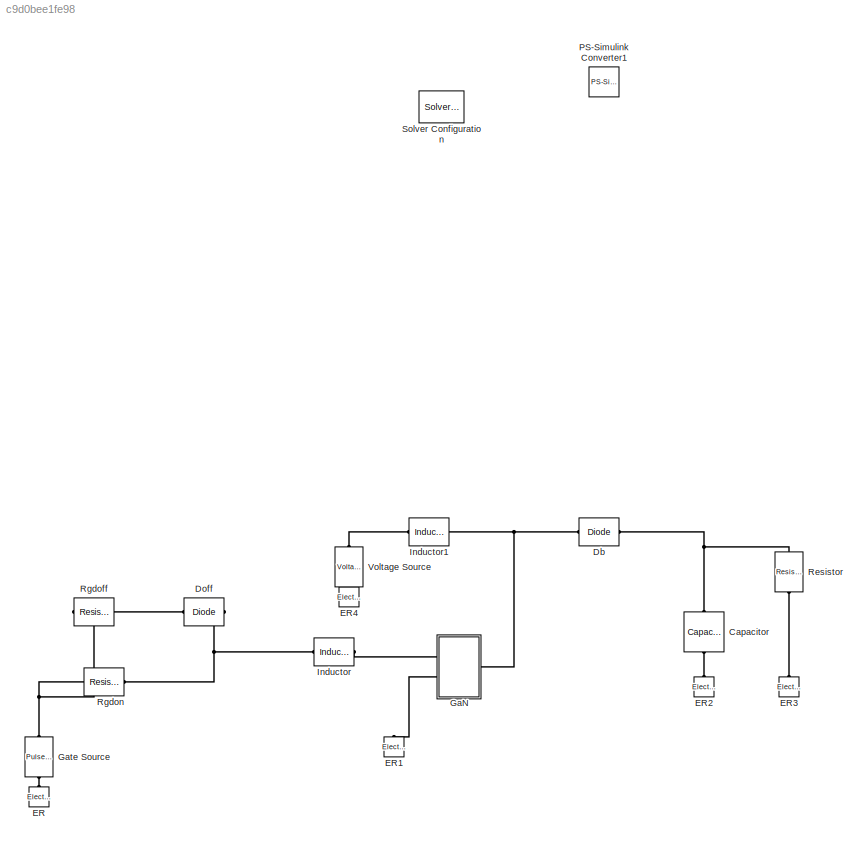
MODEL slx_c9d0bee1fe98
KIND model
CONFIG AbsTol = auto
CONFIG FixedStep = 5e-13
CONFIG MaxStep = auto
CONFIG MinStep = auto
CONFIG RelTol = 1e-3
CONFIG SampleTimeConstraint = Unconstrained
CONFIG Solver = FixedStepAuto
CONFIG SolverMode = Auto
CONFIG SolverName = FixedStepAuto
CONFIG StartTime = 0.0
CONFIG StopTime = 5e-3
BLOCK [Reference] Capacitor  REF=elec_lib/Passive Devices/Capacitor
  Ports = [0, 0, 0, 0, 0, 1, 1]
  SourceBlock = elec_lib/Passive Devices/Capacitor
  SourceType = Capacitor
BLOCK [Reference] Db  REF=elec_lib/Semiconductor
Devices/Diode
  Ports = [0, 0, 0, 0, 0, 1, 1]
  SourceBlock = elec_lib/Semiconductor\nDevices/Diode
  SourceType = Diode
BLOCK [Reference] Doff  REF=elec_lib/Semiconductor
Devices/Diode
  Ports = [0, 0, 0, 0, 0, 1, 1]
  SourceBlock = elec_lib/Semiconductor\nDevices/Diode
  SourceType = Diode
BLOCK [Reference] ER  REF=fl_lib/Electrical/Electrical Elements/Electrical Reference
  Ports = [0, 0, 0, 0, 0, 1]
  SourceBlock = fl_lib/Electrical/Electrical Elements/Electrical Reference
  SourceType = Electrical Reference
BLOCK [Reference] ER1  REF=fl_lib/Electrical/Electrical Elements/Electrical Reference
  Ports = [0, 0, 0, 0, 0, 1]
  SourceBlock = fl_lib/Electrical/Electrical Elements/Electrical Reference
  SourceType = Electrical Reference
BLOCK [Reference] ER2  REF=fl_lib/Electrical/Electrical Elements/Electrical Reference
  Ports = [0, 0, 0, 0, 0, 1]
  SourceBlock = fl_lib/Electrical/Electrical Elements/Electrical Reference
  SourceType = Electrical Reference
BLOCK [Reference] ER3  REF=fl_lib/Electrical/Electrical Elements/Electrical Reference
  Ports = [0, 0, 0, 0, 0, 1]
  SourceBlock = fl_lib/Electrical/Electrical Elements/Electrical Reference
  SourceType = Electrical Reference
BLOCK [Reference] ER4  REF=fl_lib/Electrical/Electrical Elements/Electrical Reference
  Ports = [0, 0, 0, 0, 0, 1]
  SourceBlock = fl_lib/Electrical/Electrical Elements/Electrical Reference
  SourceType = Electrical Reference
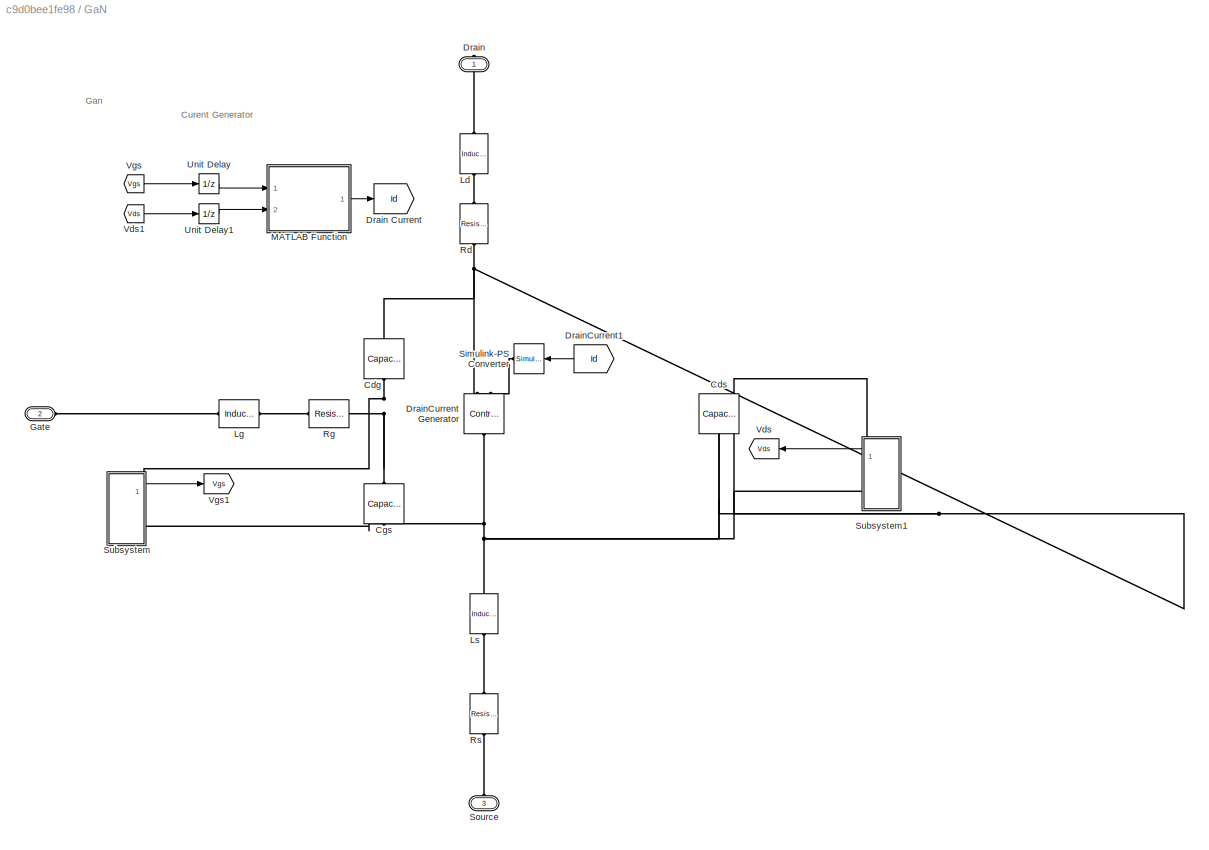
BLOCK [SubSystem] GaN
  Ports = [0, 0, 0, 0, 0, 2, 1]
  RequestExecContextInheritance = off
  Variant = off
BLOCK [Reference] GaN/Cdg  REF=elec_lib/Passive Devices/Capacitor
  Ports = [0, 0, 0, 0, 0, 1, 1]
  SourceBlock = elec_lib/Passive Devices/Capacitor
  SourceType = Capacitor
BLOCK [Reference] GaN/Cds  REF=elec_lib/Passive Devices/Capacitor
  Ports = [0, 0, 0, 0, 0, 1, 1]
  SourceBlock = elec_lib/Passive Devices/Capacitor
  SourceType = Capacitor
BLOCK [Reference] GaN/Cgs  REF=elec_lib/Passive Devices/Capacitor
  Ports = [0, 0, 0, 0, 0, 1, 1]
  SourceBlock = elec_lib/Passive Devices/Capacitor
  SourceType = Capacitor
BLOCK [PMIOPort] GaN/Drain 
  Port = 1
  Side = Right
BLOCK [Goto] GaN/Drain Current
  GotoTag = Id
BLOCK [Reference] GaN/DrainCurrent Generator  REF=fl_lib/Electrical/Electrical Sources/Controlled Current
Source
  Ports = [0, 0, 0, 0, 0, 1, 2]
  SourceBlock = fl_lib/Electrical/Electrical Sources/Controlled Current\nSource
  SourceType = Controlled Current\nSource
BLOCK [From] GaN/DrainCurrent1
  GotoTag = Id
BLOCK [PMIOPort] GaN/Gate
  Port = 2
  Side = Left
BLOCK [Reference] GaN/Ld  REF=elec_lib/Passive Devices/Inductor
  Ports = [0, 0, 0, 0, 0, 1, 1]
  SourceBlock = elec_lib/Passive Devices/Inductor
  SourceType = Inductor
BLOCK [Reference] GaN/Lg  REF=elec_lib/Passive Devices/Inductor
  Ports = [0, 0, 0, 0, 0, 1, 1]
  SourceBlock = elec_lib/Passive Devices/Inductor
  SourceType = Inductor
BLOCK [Reference] GaN/Ls  REF=elec_lib/Passive Devices/Inductor
  Ports = [0, 0, 0, 0, 0, 1, 1]
  SourceBlock = elec_lib/Passive Devices/Inductor
  SourceType = Inductor
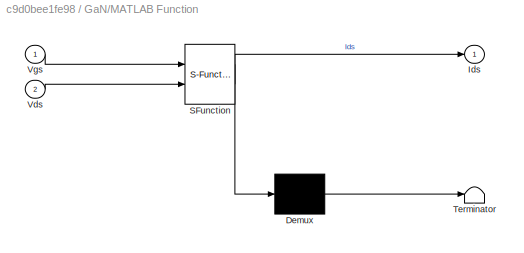
BLOCK [SubSystem] GaN/MATLAB Function
  ErrorFcn = Stateflow.Translate.translate
  PermitHierarchicalResolution = ExplicitOnly
  Ports = [2, 1]
  RequestExecContextInheritance = off
  SFBlockType = MATLAB Function
  TreatAsAtomicUnit = on
  Variant = off
BLOCK [Demux] GaN/MATLAB Function/ Demux 
  Outputs = 1
  Ports = [1, 1]
BLOCK [S-Function] GaN/MATLAB Function/ SFunction 
  EnableBusSupport = off
  FunctionName = sf_sfun
  PortCounts = [2 2]
  Ports = [2, 2]
  SFunctionDeploymentMode = off
  Tag = Stateflow S-Function BuckConverter 2
BLOCK [Terminator] GaN/MATLAB Function/ Terminator 
BLOCK [Outport] GaN/MATLAB Function/Ids
  IconDisplay = Port number
BLOCK [Inport] GaN/MATLAB Function/Vds
  IconDisplay = Port number
  Port = 2
BLOCK [Inport] GaN/MATLAB Function/Vgs
  IconDisplay = Port number
BLOCK [Reference] GaN/Rd  REF=elec_lib/Passive Devices/Resistor
  Ports = [0, 0, 0, 0, 0, 1, 1]
  SourceBlock = elec_lib/Passive Devices/Resistor
  SourceType = Resistor
BLOCK [Reference] GaN/Rg  REF=elec_lib/Passive Devices/Resistor
  Ports = [0, 0, 0, 0, 0, 1, 1]
  SourceBlock = elec_lib/Passive Devices/Resistor
  SourceType = Resistor
BLOCK [Reference] GaN/Rs  REF=elec_lib/Passive Devices/Resistor
  Ports = [0, 0, 0, 0, 0, 1, 1]
  SourceBlock = elec_lib/Passive Devices/Resistor
  SourceType = Resistor
BLOCK [Reference] GaN/Simulink-PS Converter  REF=nesl_utility/Simulink-PS
Converter
  Ports = [1, 0, 0, 0, 0, 0, 1]
  SourceBlock = nesl_utility/Simulink-PS\nConverter
  SourceType = Simulink-PS\nConverter
BLOCK [PMIOPort] GaN/Source
  Port = 3
  Side = Left
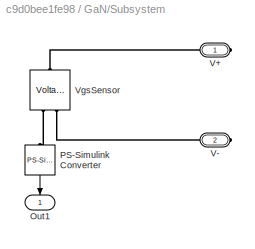
BLOCK [SubSystem] GaN/Subsystem
  Ports = [0, 1, 0, 0, 0, 0, 2]
  RequestExecContextInheritance = off
  Variant = off
BLOCK [Outport] GaN/Subsystem/Out1
  IconDisplay = Port number
BLOCK [Reference] GaN/Subsystem/PS-Simulink Converter  REF=nesl_utility/PS-Simulink
Converter
  Ports = [0, 1, 0, 0, 0, 1]
  SourceBlock = nesl_utility/PS-Simulink\nConverter
  SourceType = PS-Simulink\nConverter
BLOCK [PMIOPort] GaN/Subsystem/V+
  Port = 1
  Side = Right
BLOCK [PMIOPort] GaN/Subsystem/V-
  Port = 2
  Side = Right
BLOCK [Reference] GaN/Subsystem/VgsSensor  REF=fl_lib/Electrical/Electrical Sensors/Voltage Sensor
  Ports = [0, 0, 0, 0, 0, 1, 2]
  SourceBlock = fl_lib/Electrical/Electrical Sensors/Voltage Sensor
  SourceType = Voltage Sensor
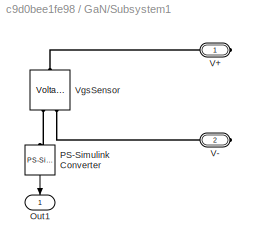
BLOCK [SubSystem] GaN/Subsystem1
  Ports = [0, 1, 0, 0, 0, 0, 2]
  RequestExecContextInheritance = off
  Variant = off
BLOCK [Outport] GaN/Subsystem1/Out1
  IconDisplay = Port number
BLOCK [Reference] GaN/Subsystem1/PS-Simulink Converter  REF=nesl_utility/PS-Simulink
Converter
  Ports = [0, 1, 0, 0, 0, 1]
  SourceBlock = nesl_utility/PS-Simulink\nConverter
  SourceType = PS-Simulink\nConverter
BLOCK [PMIOPort] GaN/Subsystem1/V+
  Port = 1
  Side = Right
BLOCK [PMIOPort] GaN/Subsystem1/V-
  Port = 2
  Side = Right
BLOCK [Reference] GaN/Subsystem1/VgsSensor  REF=fl_lib/Electrical/Electrical Sensors/Voltage Sensor
  Ports = [0, 0, 0, 0, 0, 1, 2]
  SourceBlock = fl_lib/Electrical/Electrical Sensors/Voltage Sensor
  SourceType = Voltage Sensor
BLOCK [UnitDelay] GaN/Unit Delay
  InputProcessing = Elements as channels (sample based)
  SampleTime = -1
BLOCK [UnitDelay] GaN/Unit Delay1
  InputProcessing = Elements as channels (sample based)
  SampleTime = -1
BLOCK [Goto] GaN/Vds
  GotoTag = Vds
BLOCK [From] GaN/Vds1
  GotoTag = Vds
BLOCK [From] GaN/Vgs
  GotoTag = Vgs
BLOCK [Goto] GaN/Vgs1
  GotoTag = Vgs
BLOCK [Reference] Gate Source  REF=elec_lib/Additional
Components/SPICE-Compatible
Components/Sources/Pulse Voltage Source
  Ports = [0, 0, 0, 0, 0, 1, 1]
  SourceBlock = elec_lib/Additional\nComponents/SPICE-Compatible\nComponents/Sources/Pulse Voltage Source
  SourceType = Pulse Voltage Source
BLOCK [Reference] Inductor  REF=elec_lib/Passive Devices/Inductor
  Ports = [0, 0, 0, 0, 0, 1, 1]
  SourceBlock = elec_lib/Passive Devices/Inductor
  SourceType = Inductor
BLOCK [Reference] Inductor1  REF=elec_lib/Passive Devices/Inductor
  Ports = [0, 0, 0, 0, 0, 1, 1]
  SourceBlock = elec_lib/Passive Devices/Inductor
  SourceType = Inductor
BLOCK [Reference] PS-Simulink Converter1  REF=nesl_utility/PS-Simulink
Converter
  Ports = [0, 1, 0, 0, 0, 1]
  SourceBlock = nesl_utility/PS-Simulink\nConverter
  SourceType = PS-Simulink\nConverter
BLOCK [Reference] Resistor  REF=elec_lib/Passive Devices/Resistor
  Ports = [0, 0, 0, 0, 0, 1, 1]
  SourceBlock = elec_lib/Passive Devices/Resistor
  SourceType = Resistor
BLOCK [Reference] Rgdoff  REF=elec_lib/Passive Devices/Resistor
  Ports = [0, 0, 0, 0, 0, 1, 1]
  SourceBlock = elec_lib/Passive Devices/Resistor
  SourceType = Resistor
BLOCK [Reference] Rgdon  REF=elec_lib/Passive Devices/Resistor
  Ports = [0, 0, 0, 0, 0, 1, 1]
  SourceBlock = elec_lib/Passive Devices/Resistor
  SourceType = Resistor
BLOCK [Reference] Solver Configuration  REF=nesl_utility/Solver
Configuration
  Ports = [0, 0, 0, 0, 0, 0, 1]
  SourceBlock = nesl_utility/Solver\nConfiguration
  SourceType = Solver\nConfiguration
BLOCK [Reference] Voltage Source  REF=elec_lib/Sources/Voltage Source
  Ports = [0, 0, 0, 0, 0, 1, 1]
  SourceBlock = elec_lib/Sources/Voltage Source
  SourceType = Voltage Source
ANNOTATION GaN: Curent Generator
ANNOTATION GaN: Gan
LINE GaN/DrainCurrent1:1 -> GaN/Simulink-PS Converter:1
LINE GaN/MATLAB Function:1 -> GaN/Drain Current:1
LINE GaN/Subsystem/PS-Simulink Converter:1 -> GaN/Subsystem/Out1:1
LINE GaN/Subsystem1/PS-Simulink Converter:1 -> GaN/Subsystem1/Out1:1
LINE GaN/Subsystem1:1 -> GaN/Vds:1
LINE GaN/Subsystem:1 -> GaN/Vgs1:1
LINE GaN/Unit Delay1:1 -> GaN/MATLAB Function:2
LINE GaN/Unit Delay:1 -> GaN/MATLAB Function:1
LINE GaN/Vds1:1 -> GaN/Unit Delay1:1
LINE GaN/Vgs:1 -> GaN/Unit Delay:1
PNET net1: Capacitor:LConn1 -- Db:RConn1 -- Resistor:LConn1
PLINE Capacitor:RConn1 -- ER2:LConn1
PNET net2: Db:LConn1 -- GaN:RConn1 -- Inductor1:RConn1
PNET net3: Doff:LConn1 -- Inductor:LConn1 -- Rgdon:LConn1
PLINE Doff:RConn1 -- Rgdoff:LConn1
PLINE ER1:LConn1 -- GaN:LConn2
PLINE ER3:LConn1 -- Resistor:RConn1
PLINE ER4:LConn1 -- Voltage Source:RConn1
PLINE ER:LConn1 -- Gate Source:RConn1
PNET net4: GaN/Cdg:LConn1 -- GaN/Cds:LConn1 -- GaN/DrainCurrent Generator:RConn2 -- GaN/Rd:RConn1 -- GaN/Subsystem1:RConn1
PNET net5: GaN/Cdg:RConn1 -- GaN/Cgs:LConn1 -- GaN/Rg:RConn1 -- GaN/Subsystem:RConn1
PNET net6: GaN/Cds:RConn1 -- GaN/Cgs:RConn1 -- GaN/DrainCurrent Generator:LConn1 -- GaN/Ls:LConn1 -- GaN/Subsystem1:RConn2 -- GaN/Subsystem:RConn2
PLINE GaN/Drain :RConn1 -- GaN/Ld:LConn1
PLINE GaN/DrainCurrent Generator:RConn1 -- GaN/Simulink-PS Converter:RConn1
PLINE GaN/Gate:RConn1 -- GaN/Lg:LConn1
PLINE GaN/Ld:RConn1 -- GaN/Rd:LConn1
PLINE GaN/Lg:RConn1 -- GaN/Rg:LConn1
PLINE GaN/Ls:RConn1 -- GaN/Rs:LConn1
PLINE GaN/Rs:RConn1 -- GaN/Source:RConn1
PLINE GaN/Subsystem/PS-Simulink Converter:LConn1 -- GaN/Subsystem/VgsSensor:RConn1
PLINE GaN/Subsystem/V+:RConn1 -- GaN/Subsystem/VgsSensor:LConn1
PLINE GaN/Subsystem/V-:RConn1 -- GaN/Subsystem/VgsSensor:RConn2
PLINE GaN/Subsystem1/PS-Simulink Converter:LConn1 -- GaN/Subsystem1/VgsSensor:RConn1
PLINE GaN/Subsystem1/V+:RConn1 -- GaN/Subsystem1/VgsSensor:LConn1
PLINE GaN/Subsystem1/V-:RConn1 -- GaN/Subsystem1/VgsSensor:RConn2
PLINE GaN:LConn1 -- Inductor:RConn1
PNET net7: Gate Source:LConn1 -- Rgdoff:RConn1 -- Rgdon:RConn1
PLINE Inductor1:LConn1 -- Voltage Source:LConn1
note: PNET lines group multi-terminal physical nets as a canonical sorted terminal list (undirected conserving connections); 2-terminal nets keep the pairwise PLINE form
CHART GaN/MATLAB Function states=1 transitions=1
  STATE_LABEL 'eML_blk_kernel()'
  STATE_LABEL 'SCRIPT:\nfunction Ids = fcn(Vgs,Vds)\n%#codegen\n\nVgd = Vgs - Vds;\ncur = 4.5056641;\nK = cur * 0.8 * ((273)/300)^(-2.7);\nx0 = 0.31 ;\nx1 = 0.255;\nslp = 2;\n\n\nif Vds>0\n    Ids = K*log(1+exp(26*(Vgs-1.7)/slp))*(Vds)/((1+max((x0+x1*(Vgs+4.1)),0.2)*(Vds)));\nelse\n\n    Ids = -K*log(1+exp(26*(Vgd-1.7)/slp))*(-Vds)/(1+max((x0+x1*(Vgd+6.1)),0.2)*(-Vds));\nend\n'
